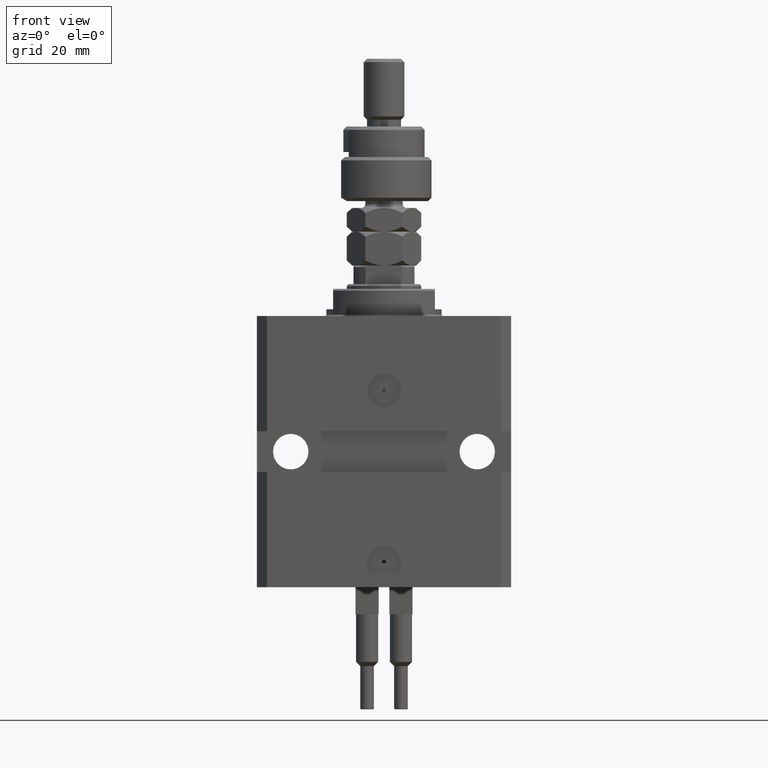
[diagram: clean part render]
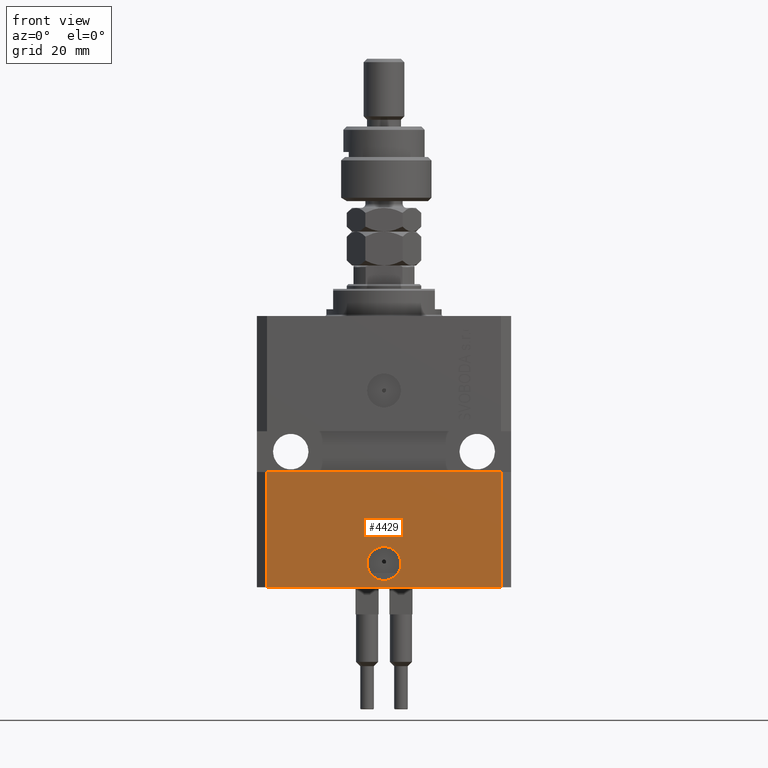
[diagram: same view with one face highlighted and labeled with its STEP entity id]
A machine part, front view. The second image highlights one B-rep face of the part: STEP entity #4429.
In plain terms, the highlighted planar face has unit normal (0, -1, 0).
Its self-contained STEP definition (entity closure, byte-faithful):
#627 = AXIS2_PLACEMENT_3D ( 'NONE', #26144, #7005, #34062 ) ;
#1021 = CARTESIAN_POINT ( 'NONE',  ( -37.50000000000000000, -27.50000000000000000, -46.00000000000000000 ) ) ;
#1281 = DIRECTION ( 'NONE',  ( 1.000000000000000000, 9.251858538542972814E-17, 0.000000000000000000 ) ) ;
#2480 = VECTOR ( 'NONE', #23491, 1000.000000000000000 ) ;
#2657 = DIRECTION ( 'NONE',  ( 0.000000000000000000, 0.000000000000000000, 1.000000000000000000 ) ) ;
#3423 = FACE_OUTER_BOUND ( 'NONE', #21619, .T. ) ;
#3680 = EDGE_CURVE ( 'NONE', #21674, #48408, #37298, .T. ) ;
#4112 = CARTESIAN_POINT ( 'NONE',  ( -34.49999999999998579, -27.49999999999999645, -80.00000000000000000 ) ) ;
#4429 = ADVANCED_FACE ( 'NONE', ( #34822, #3423 ), #18251, .T. ) ;
#4452 = CARTESIAN_POINT ( 'NONE',  ( 34.49999999999999289, -27.49999999999999645, -80.00000000000000000 ) ) ;
#6355 = ORIENTED_EDGE ( 'NONE', *, *, #12862, .F. ) ;
#7005 = DIRECTION ( 'NONE',  ( 0.000000000000000000, -1.000000000000000000, 0.000000000000000000 ) ) ;
#7153 = DIRECTION ( 'NONE',  ( 1.176083712526788232E-16, -1.000000000000000000, 0.000000000000000000 ) ) ;
#7340 = ORIENTED_EDGE ( 'NONE', *, *, #3680, .F. ) ;
#8427 = LINE ( 'NONE', #1021, #34421 ) ;
#9202 = EDGE_CURVE ( 'NONE', #17429, #24680, #11509, .T. ) ;
#10495 = VERTEX_POINT ( 'NONE', #4452 ) ;
#11325 = ORIENTED_EDGE ( 'NONE', *, *, #47374, .F. ) ;
#11509 = LINE ( 'NONE', #12256, #2480 ) ;
#12256 = CARTESIAN_POINT ( 'NONE',  ( -34.49999999999998579, -27.49999999999999645, -80.00000000000000000 ) ) ;
#12862 = EDGE_CURVE ( 'NONE', #24680, #50203, #8427, .T. ) ;
#16225 = CARTESIAN_POINT ( 'NONE',  ( -5.000000000000006217, -27.49999999999999645, -73.00000000000000000 ) ) ;
#17418 = VECTOR ( 'NONE', #2657, 1000.000000000000000 ) ;
#17429 = VERTEX_POINT ( 'NONE', #4112 ) ;
#18251 = PLANE ( 'NONE',  #627 ) ;
#18982 = CARTESIAN_POINT ( 'NONE',  ( -34.49999999999998579, -27.50000000000000000, -46.00000000000000000 ) ) ;
#19407 = VECTOR ( 'NONE', #21154, 1000.000000000000000 ) ;
#21154 = DIRECTION ( 'NONE',  ( 1.000000000000000000, 0.000000000000000000, 0.000000000000000000 ) ) ;
#21619 = EDGE_LOOP ( 'NONE', ( #6355, #33189, #25318, #40580 ) ) ;
#21674 = VERTEX_POINT ( 'NONE', #16225 ) ;
#22562 = LINE ( 'NONE', #50128, #17418 ) ;
#22723 = DIRECTION ( 'NONE',  ( 1.000000000000000000, 0.000000000000000000, 0.000000000000000000 ) ) ;
#23428 = AXIS2_PLACEMENT_3D ( 'NONE', #39597, #44166, #43420 ) ;
#23491 = DIRECTION ( 'NONE',  ( 0.000000000000000000, 0.000000000000000000, 1.000000000000000000 ) ) ;
#24680 = VERTEX_POINT ( 'NONE', #18982 ) ;
#25136 = CIRCLE ( 'NONE', #47973, 5.000000000000006217 ) ;
#25237 = LINE ( 'NONE', #40308, #19407 ) ;
#25318 = ORIENTED_EDGE ( 'NONE', *, *, #46691, .T. ) ;
#26144 = CARTESIAN_POINT ( 'NONE',  ( -34.49999999999998579, -27.49999999999999645, -80.00000000000000000 ) ) ;
#33189 = ORIENTED_EDGE ( 'NONE', *, *, #9202, .F. ) ;
#33362 = EDGE_CURVE ( 'NONE', #10495, #50203, #22562, .T. ) ;
#34062 = DIRECTION ( 'NONE',  ( 0.000000000000000000, -0.000000000000000000, -1.000000000000000000 ) ) ;
#34421 = VECTOR ( 'NONE', #1281, 1000.000000000000000 ) ;
#34822 = FACE_BOUND ( 'NONE', #38644, .T. ) ;
#37298 = CIRCLE ( 'NONE', #23428, 5.000000000000006217 ) ;
#37696 = CARTESIAN_POINT ( 'NONE',  ( 34.49999999999999289, -27.49999999999999289, -46.00000000000000000 ) ) ;
#38644 = EDGE_LOOP ( 'NONE', ( #11325, #7340 ) ) ;
#39597 = CARTESIAN_POINT ( 'NONE',  ( 0.000000000000000000, -27.49999999999999645, -73.00000000000000000 ) ) ;
#40308 = CARTESIAN_POINT ( 'NONE',  ( -34.49999999999998579, -27.49999999999999645, -80.00000000000000000 ) ) ;
#40580 = ORIENTED_EDGE ( 'NONE', *, *, #33362, .T. ) ;
#42130 = CARTESIAN_POINT ( 'NONE',  ( 0.000000000000000000, -27.49999999999999645, -73.00000000000000000 ) ) ;
#43420 = DIRECTION ( 'NONE',  ( 1.000000000000000000, 0.000000000000000000, 0.000000000000000000 ) ) ;
#44166 = DIRECTION ( 'NONE',  ( 1.176083712526788232E-16, -1.000000000000000000, 0.000000000000000000 ) ) ;
#46691 = EDGE_CURVE ( 'NONE', #17429, #10495, #25237, .T. ) ;
#47374 = EDGE_CURVE ( 'NONE', #48408, #21674, #25136, .T. ) ;
#47973 = AXIS2_PLACEMENT_3D ( 'NONE', #42130, #7153, #22723 ) ;
#48408 = VERTEX_POINT ( 'NONE', #48797 ) ;
#48797 = CARTESIAN_POINT ( 'NONE',  ( 5.000000000000006217, -27.49999999999999645, -73.00000000000000000 ) ) ;
#50128 = CARTESIAN_POINT ( 'NONE',  ( 34.49999999999999289, -27.49999999999999645, -80.00000000000000000 ) ) ;
#50203 = VERTEX_POINT ( 'NONE', #37696 ) ;